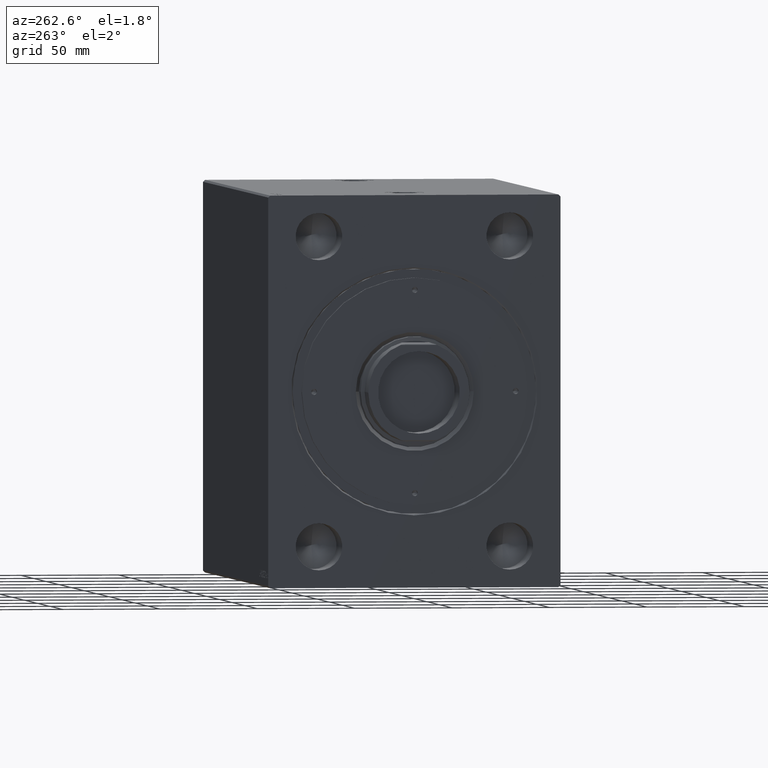
[diagram: clean part render]
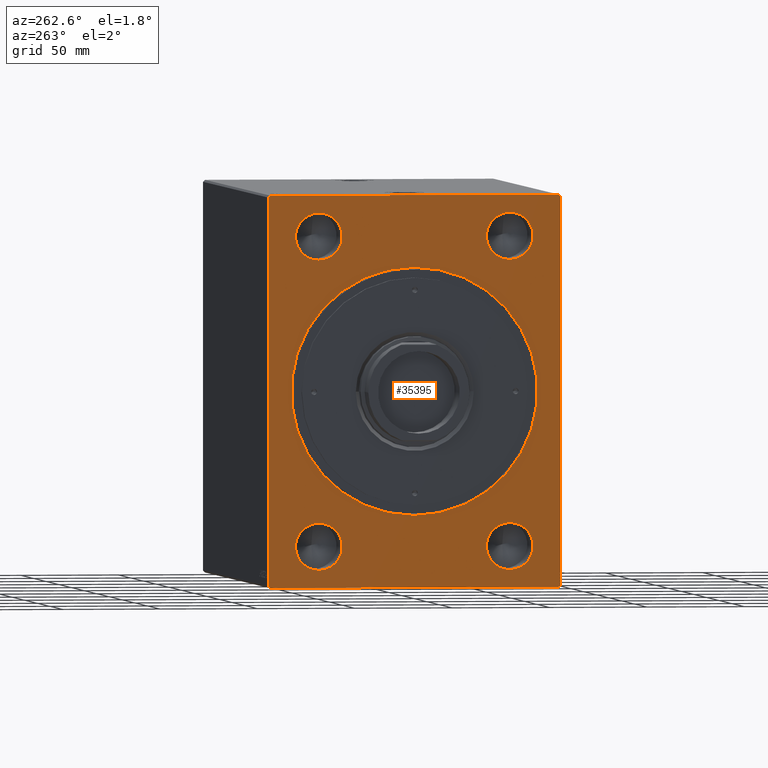
[diagram: same view with one face highlighted and labeled with its STEP entity id]
A machine part, auxiliary view. The second image highlights one B-rep face of the part: STEP entity #35395.
In plain terms, the highlighted planar face has unit normal (1, 0, 0).
Its self-contained STEP definition (entity closure, byte-faithful):
#4 = DIRECTION ( 'NONE',  ( 0.000000000000000000, 1.000000000000000000, 0.000000000000000000 ) ) ;
#91 = DIRECTION ( 'NONE',  ( 0.000000000000000000, 0.000000000000000000, 1.000000000000000000 ) ) ;
#109 = CARTESIAN_POINT ( 'NONE',  ( 9.797174393178825657E-16, 49.00000000000000000, 79.00000000000001421 ) ) ;
#371 = ORIENTED_EDGE ( 'NONE', *, *, #10629, .F. ) ;
#455 = VERTEX_POINT ( 'NONE', #28608 ) ;
#827 = CARTESIAN_POINT ( 'NONE',  ( 0.000000000000000000, 74.00000000000000000, 99.99999999999995737 ) ) ;
#912 = FACE_BOUND ( 'NONE', #13680, .T. ) ;
#1017 = DIRECTION ( 'NONE',  ( -1.000000000000000000, -0.000000000000000000, -0.000000000000000000 ) ) ;
#1156 = VERTEX_POINT ( 'NONE', #37624 ) ;
#1322 = EDGE_CURVE ( 'NONE', #31913, #31812, #42120, .T. ) ;
#1341 = ORIENTED_EDGE ( 'NONE', *, *, #44224, .F. ) ;
#1730 = FACE_BOUND ( 'NONE', #13880, .T. ) ;
#1941 = EDGE_CURVE ( 'NONE', #21875, #42650, #42551, .T. ) ;
#2228 = DIRECTION ( 'NONE',  ( 0.000000000000000000, 0.000000000000000000, 1.000000000000000000 ) ) ;
#2264 = VERTEX_POINT ( 'NONE', #28824 ) ;
#2369 = AXIS2_PLACEMENT_3D ( 'NONE', #11554, #14920, #24822 ) ;
#2539 = ORIENTED_EDGE ( 'NONE', *, *, #1322, .F. ) ;
#2695 = DIRECTION ( 'NONE',  ( 0.000000000000000000, 1.401796748264086446E-16, -1.000000000000000000 ) ) ;
#2816 = EDGE_CURVE ( 'NONE', #37608, #1156, #8050, .T. ) ;
#3231 = LINE ( 'NONE', #40969, #43271 ) ;
#3414 = EDGE_LOOP ( 'NONE', ( #8869, #43868, #43242, #371, #10963, #6008, #10619, #4955 ) ) ;
#3452 = VERTEX_POINT ( 'NONE', #30556 ) ;
#3546 = EDGE_CURVE ( 'NONE', #26337, #38055, #21786, .T. ) ;
#3747 = ORIENTED_EDGE ( 'NONE', *, *, #35897, .T. ) ;
#3800 = AXIS2_PLACEMENT_3D ( 'NONE', #39441, #15382, #18332 ) ;
#3872 = DIRECTION ( 'NONE',  ( -1.000000000000000000, -0.000000000000000000, -0.000000000000000000 ) ) ;
#4083 = VERTEX_POINT ( 'NONE', #38804 ) ;
#4955 = ORIENTED_EDGE ( 'NONE', *, *, #17069, .F. ) ;
#5039 = ORIENTED_EDGE ( 'NONE', *, *, #10880, .F. ) ;
#5509 = CARTESIAN_POINT ( 'NONE',  ( 0.000000000000000000, 0.000000000000000000, 0.000000000000000000 ) ) ;
#6008 = ORIENTED_EDGE ( 'NONE', *, *, #16712, .F. ) ;
#6152 = DIRECTION ( 'NONE',  ( 0.000000000000000000, -7.008983741320432232E-17, 1.000000000000000000 ) ) ;
#6231 = AXIS2_PLACEMENT_3D ( 'NONE', #33817, #1017, #31310 ) ;
#6257 = VECTOR ( 'NONE', #2695, 1000.000000000000000 ) ;
#8035 = LINE ( 'NONE', #35236, #39260 ) ;
#8050 = LINE ( 'NONE', #22826, #37507 ) ;
#8502 = DIRECTION ( 'NONE',  ( -1.000000000000000000, -0.000000000000000000, -0.000000000000000000 ) ) ;
#8869 = ORIENTED_EDGE ( 'NONE', *, *, #20465, .F. ) ;
#8899 = CIRCLE ( 'NONE', #13205, 11.99999999999999645 ) ;
#9334 = DIRECTION ( 'NONE',  ( 1.000000000000000000, 0.000000000000000000, 0.000000000000000000 ) ) ;
#9855 = ORIENTED_EDGE ( 'NONE', *, *, #25139, .F. ) ;
#10202 = CARTESIAN_POINT ( 'NONE',  ( 0.000000000000000000, 0.000000000000000000, 63.20000000000003126 ) ) ;
#10323 = VERTEX_POINT ( 'NONE', #40479 ) ;
#10385 = EDGE_LOOP ( 'NONE', ( #27879, #33325 ) ) ;
#10581 = VERTEX_POINT ( 'NONE', #42899 ) ;
#10619 = ORIENTED_EDGE ( 'NONE', *, *, #17935, .F. ) ;
#10629 = EDGE_CURVE ( 'NONE', #455, #37608, #21063, .T. ) ;
#10880 = EDGE_CURVE ( 'NONE', #38055, #26337, #29372, .T. ) ;
#10963 = ORIENTED_EDGE ( 'NONE', *, *, #30676, .F. ) ;
#11373 = CARTESIAN_POINT ( 'NONE',  ( 9.797174393178825657E-16, -49.00000000000000000, -91.00000000000000000 ) ) ;
#11390 = EDGE_CURVE ( 'NONE', #42650, #21875, #22186, .T. ) ;
#11554 = CARTESIAN_POINT ( 'NONE',  ( 9.797174393178825657E-16, -49.00000000000000000, -79.00000000000000000 ) ) ;
#11620 = DIRECTION ( 'NONE',  ( 0.000000000000000000, -0.7071067811865474617, -0.7071067811865474617 ) ) ;
#11785 = VERTEX_POINT ( 'NONE', #26405 ) ;
#11872 = CIRCLE ( 'NONE', #35560, 63.20000000000003126 ) ;
#12030 = DIRECTION ( 'NONE',  ( 1.000000000000000000, 0.000000000000000000, 0.000000000000000000 ) ) ;
#12753 = DIRECTION ( 'NONE',  ( -1.000000000000000000, -0.000000000000000000, -0.000000000000000000 ) ) ;
#13205 = AXIS2_PLACEMENT_3D ( 'NONE', #32977, #12753, #2228 ) ;
#13680 = EDGE_LOOP ( 'NONE', ( #1341, #38100 ) ) ;
#13880 = EDGE_LOOP ( 'NONE', ( #2539, #9855 ) ) ;
#14920 = DIRECTION ( 'NONE',  ( -1.000000000000000000, -0.000000000000000000, -0.000000000000000000 ) ) ;
#15006 = DIRECTION ( 'NONE',  ( 0.000000000000000000, 0.7071067811865474617, -0.7071067811865474617 ) ) ;
#15023 = AXIS2_PLACEMENT_3D ( 'NONE', #109, #24111, #41860 ) ;
#15382 = DIRECTION ( 'NONE',  ( -1.000000000000000000, -0.000000000000000000, -0.000000000000000000 ) ) ;
#15386 = FACE_OUTER_BOUND ( 'NONE', #3414, .T. ) ;
#15729 = CARTESIAN_POINT ( 'NONE',  ( 0.000000000000000000, 0.000000000000000000, 0.000000000000000000 ) ) ;
#16712 = EDGE_CURVE ( 'NONE', #30976, #4083, #30297, .T. ) ;
#16829 = DIRECTION ( 'NONE',  ( 0.000000000000000000, 0.000000000000000000, 1.000000000000000000 ) ) ;
#17069 = EDGE_CURVE ( 'NONE', #10581, #11785, #20788, .T. ) ;
#17304 = CARTESIAN_POINT ( 'NONE',  ( 9.797174393178825657E-16, 49.00000000000000000, 91.00000000000001421 ) ) ;
#17935 = EDGE_CURVE ( 'NONE', #11785, #30976, #8035, .T. ) ;
#17952 = FACE_BOUND ( 'NONE', #10385, .T. ) ;
#18332 = DIRECTION ( 'NONE',  ( 0.000000000000000000, 0.000000000000000000, 1.000000000000000000 ) ) ;
#18387 = DIRECTION ( 'NONE',  ( 0.000000000000000000, 0.7071067811865474617, 0.7071067811865474617 ) ) ;
#18758 = CARTESIAN_POINT ( 'NONE',  ( 9.797174393178825657E-16, -49.00000000000000000, -67.00000000000000000 ) ) ;
#18825 = CARTESIAN_POINT ( 'NONE',  ( 9.797174393178825657E-16, 49.00000000000000000, -66.99999999999998579 ) ) ;
#18896 = VECTOR ( 'NONE', #15006, 1000.000000000000114 ) ;
#19186 = EDGE_LOOP ( 'NONE', ( #3747, #29871 ) ) ;
#19444 = FACE_BOUND ( 'NONE', #30703, .T. ) ;
#19531 = ORIENTED_EDGE ( 'NONE', *, *, #3546, .F. ) ;
#19612 = DIRECTION ( 'NONE',  ( 0.000000000000000000, -0.7071067811865474617, 0.7071067811865474617 ) ) ;
#20465 = EDGE_CURVE ( 'NONE', #3452, #10581, #32868, .T. ) ;
#20778 = VECTOR ( 'NONE', #4, 1000.000000000000000 ) ;
#20788 = LINE ( 'NONE', #827, #37842 ) ;
#21063 = LINE ( 'NONE', #24444, #20778 ) ;
#21070 = DIRECTION ( 'NONE',  ( -1.000000000000000000, -0.000000000000000000, -0.000000000000000000 ) ) ;
#21196 = CIRCLE ( 'NONE', #37722, 63.20000000000003126 ) ;
#21445 = CARTESIAN_POINT ( 'NONE',  ( 9.797174393178825657E-16, -49.00000000000000000, 91.00000000000001421 ) ) ;
#21714 = CIRCLE ( 'NONE', #2369, 11.99999999999999645 ) ;
#21786 = CIRCLE ( 'NONE', #28235, 11.99999999999999645 ) ;
#21817 = DIRECTION ( 'NONE',  ( 1.000000000000000000, 0.000000000000000000, 0.000000000000000000 ) ) ;
#21875 = VERTEX_POINT ( 'NONE', #18825 ) ;
#22186 = CIRCLE ( 'NONE', #31519, 11.99999999999999645 ) ;
#22201 = LINE ( 'NONE', #38401, #18896 ) ;
#22826 = CARTESIAN_POINT ( 'NONE',  ( 0.000000000000000000, 74.00000000000001421, -100.0000000000000426 ) ) ;
#23170 = CARTESIAN_POINT ( 'NONE',  ( 9.797174393178825657E-16, 49.00000000000000000, 67.00000000000001421 ) ) ;
#24005 = CARTESIAN_POINT ( 'NONE',  ( 9.797174393178825657E-16, 49.00000000000000000, -78.99999999999998579 ) ) ;
#24111 = DIRECTION ( 'NONE',  ( -1.000000000000000000, -0.000000000000000000, -0.000000000000000000 ) ) ;
#24444 = CARTESIAN_POINT ( 'NONE',  ( 0.000000000000000000, -73.99999999999998579, -100.0000000000000426 ) ) ;
#24822 = DIRECTION ( 'NONE',  ( 0.000000000000000000, 0.000000000000000000, 1.000000000000000000 ) ) ;
#25139 = EDGE_CURVE ( 'NONE', #31812, #31913, #21714, .T. ) ;
#25444 = EDGE_CURVE ( 'NONE', #1156, #3452, #3231, .T. ) ;
#25745 = DIRECTION ( 'NONE',  ( 0.000000000000000000, 0.000000000000000000, -1.000000000000000000 ) ) ;
#26185 = DIRECTION ( 'NONE',  ( 0.000000000000000000, 0.000000000000000000, -1.000000000000000000 ) ) ;
#26337 = VERTEX_POINT ( 'NONE', #23170 ) ;
#26405 = CARTESIAN_POINT ( 'NONE',  ( 0.000000000000000000, -74.00000000000000000, 99.99999999999994316 ) ) ;
#27351 = CARTESIAN_POINT ( 'NONE',  ( 9.797174393178825657E-16, 49.00000000000000000, -90.99999999999998579 ) ) ;
#27879 = ORIENTED_EDGE ( 'NONE', *, *, #1941, .F. ) ;
#28127 = CARTESIAN_POINT ( 'NONE',  ( 9.797174393178825657E-16, -49.00000000000000000, 79.00000000000001421 ) ) ;
#28235 = AXIS2_PLACEMENT_3D ( 'NONE', #42653, #8502, #28290 ) ;
#28290 = DIRECTION ( 'NONE',  ( 0.000000000000000000, 0.000000000000000000, 1.000000000000000000 ) ) ;
#28608 = CARTESIAN_POINT ( 'NONE',  ( 0.000000000000000000, -73.99999999999998579, -100.0000000000000426 ) ) ;
#28824 = CARTESIAN_POINT ( 'NONE',  ( 0.000000000000000000, 7.739767770611276825E-15, -63.20000000000003126 ) ) ;
#29267 = VECTOR ( 'NONE', #19612, 1000.000000000000114 ) ;
#29372 = CIRCLE ( 'NONE', #15023, 11.99999999999999645 ) ;
#29553 = PLANE ( 'NONE',  #39867 ) ;
#29871 = ORIENTED_EDGE ( 'NONE', *, *, #41971, .T. ) ;
#30095 = VERTEX_POINT ( 'NONE', #10202 ) ;
#30176 = CARTESIAN_POINT ( 'NONE',  ( 0.000000000000000000, 75.00000000000000000, 98.99999999999995737 ) ) ;
#30297 = LINE ( 'NONE', #37928, #6257 ) ;
#30556 = CARTESIAN_POINT ( 'NONE',  ( 0.000000000000000000, 75.00000000000000000, 98.99999999999995737 ) ) ;
#30676 = EDGE_CURVE ( 'NONE', #4083, #455, #22201, .T. ) ;
#30703 = EDGE_LOOP ( 'NONE', ( #5039, #19531 ) ) ;
#30976 = VERTEX_POINT ( 'NONE', #33873 ) ;
#31310 = DIRECTION ( 'NONE',  ( 0.000000000000000000, 0.000000000000000000, 1.000000000000000000 ) ) ;
#31519 = AXIS2_PLACEMENT_3D ( 'NONE', #24005, #21070, #16829 ) ;
#31673 = EDGE_CURVE ( 'NONE', #10323, #43886, #8899, .T. ) ;
#31812 = VERTEX_POINT ( 'NONE', #11373 ) ;
#31913 = VERTEX_POINT ( 'NONE', #18758 ) ;
#32731 = CIRCLE ( 'NONE', #34186, 11.99999999999999645 ) ;
#32868 = LINE ( 'NONE', #30176, #29267 ) ;
#32977 = CARTESIAN_POINT ( 'NONE',  ( 9.797174393178825657E-16, -49.00000000000000000, 79.00000000000001421 ) ) ;
#33325 = ORIENTED_EDGE ( 'NONE', *, *, #11390, .F. ) ;
#33817 = CARTESIAN_POINT ( 'NONE',  ( 9.797174393178825657E-16, -49.00000000000000000, -79.00000000000000000 ) ) ;
#33873 = CARTESIAN_POINT ( 'NONE',  ( 0.000000000000000000, -75.00000000000000000, 98.99999999999994316 ) ) ;
#34186 = AXIS2_PLACEMENT_3D ( 'NONE', #28127, #3872, #91 ) ;
#34496 = DIRECTION ( 'NONE',  ( 0.000000000000000000, -1.000000000000000000, -9.376883653928687363E-17 ) ) ;
#35236 = CARTESIAN_POINT ( 'NONE',  ( 0.000000000000000000, -74.00000000000000000, 99.99999999999994316 ) ) ;
#35395 = ADVANCED_FACE ( 'NONE', ( #19444, #1730, #17952, #912, #42817, #15386 ), #29553, .F. ) ;
#35560 = AXIS2_PLACEMENT_3D ( 'NONE', #15729, #21817, #39558 ) ;
#35897 = EDGE_CURVE ( 'NONE', #30095, #2264, #11872, .T. ) ;
#37507 = VECTOR ( 'NONE', #18387, 1000.000000000000114 ) ;
#37608 = VERTEX_POINT ( 'NONE', #43452 ) ;
#37624 = CARTESIAN_POINT ( 'NONE',  ( 0.000000000000000000, 75.00000000000001421, -99.00000000000004263 ) ) ;
#37722 = AXIS2_PLACEMENT_3D ( 'NONE', #5509, #9334, #26185 ) ;
#37842 = VECTOR ( 'NONE', #34496, 1000.000000000000000 ) ;
#37928 = CARTESIAN_POINT ( 'NONE',  ( 0.000000000000000000, -75.00000000000000000, 98.99999999999994316 ) ) ;
#38055 = VERTEX_POINT ( 'NONE', #17304 ) ;
#38100 = ORIENTED_EDGE ( 'NONE', *, *, #31673, .F. ) ;
#38401 = CARTESIAN_POINT ( 'NONE',  ( 0.000000000000000000, -74.99999999999997158, -99.00000000000005684 ) ) ;
#38804 = CARTESIAN_POINT ( 'NONE',  ( 0.000000000000000000, -74.99999999999997158, -99.00000000000005684 ) ) ;
#39260 = VECTOR ( 'NONE', #11620, 1000.000000000000114 ) ;
#39441 = CARTESIAN_POINT ( 'NONE',  ( 9.797174393178825657E-16, 49.00000000000000000, -78.99999999999998579 ) ) ;
#39558 = DIRECTION ( 'NONE',  ( 0.000000000000000000, 0.000000000000000000, -1.000000000000000000 ) ) ;
#39867 = AXIS2_PLACEMENT_3D ( 'NONE', #43263, #12030, #25745 ) ;
#40479 = CARTESIAN_POINT ( 'NONE',  ( 9.797174393178825657E-16, -49.00000000000000000, 67.00000000000001421 ) ) ;
#40969 = CARTESIAN_POINT ( 'NONE',  ( 0.000000000000000000, 75.00000000000001421, -99.00000000000004263 ) ) ;
#41860 = DIRECTION ( 'NONE',  ( 0.000000000000000000, 0.000000000000000000, 1.000000000000000000 ) ) ;
#41971 = EDGE_CURVE ( 'NONE', #2264, #30095, #21196, .T. ) ;
#42120 = CIRCLE ( 'NONE', #6231, 11.99999999999999645 ) ;
#42551 = CIRCLE ( 'NONE', #3800, 11.99999999999999645 ) ;
#42650 = VERTEX_POINT ( 'NONE', #27351 ) ;
#42653 = CARTESIAN_POINT ( 'NONE',  ( 9.797174393178825657E-16, 49.00000000000000000, 79.00000000000001421 ) ) ;
#42817 = FACE_BOUND ( 'NONE', #19186, .T. ) ;
#42899 = CARTESIAN_POINT ( 'NONE',  ( 0.000000000000000000, 74.00000000000000000, 99.99999999999995737 ) ) ;
#43242 = ORIENTED_EDGE ( 'NONE', *, *, #2816, .F. ) ;
#43263 = CARTESIAN_POINT ( 'NONE',  ( 0.000000000000000000, 0.000000000000000000, 0.000000000000000000 ) ) ;
#43271 = VECTOR ( 'NONE', #6152, 1000.000000000000000 ) ;
#43452 = CARTESIAN_POINT ( 'NONE',  ( 0.000000000000000000, 74.00000000000001421, -100.0000000000000426 ) ) ;
#43868 = ORIENTED_EDGE ( 'NONE', *, *, #25444, .F. ) ;
#43886 = VERTEX_POINT ( 'NONE', #21445 ) ;
#44224 = EDGE_CURVE ( 'NONE', #43886, #10323, #32731, .T. ) ;